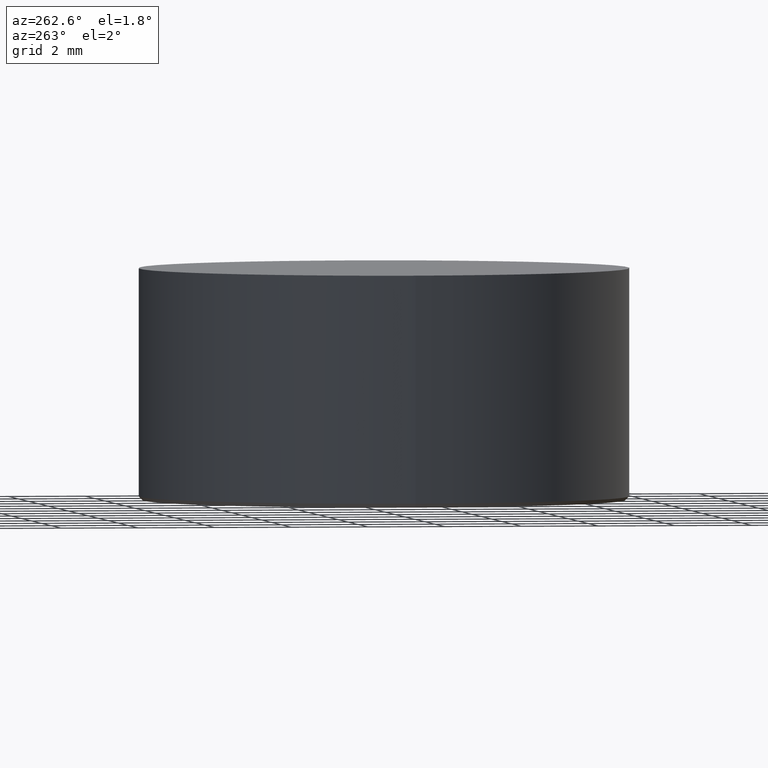
[diagram: clean part render]
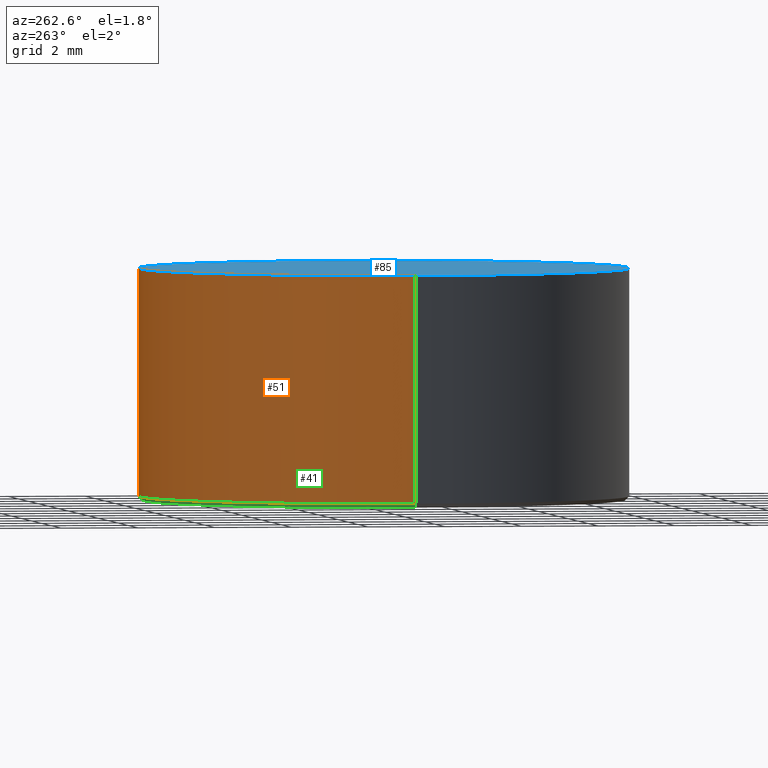
[diagram: same view with three faces highlighted in distinct colors, each labeled with its STEP entity id]
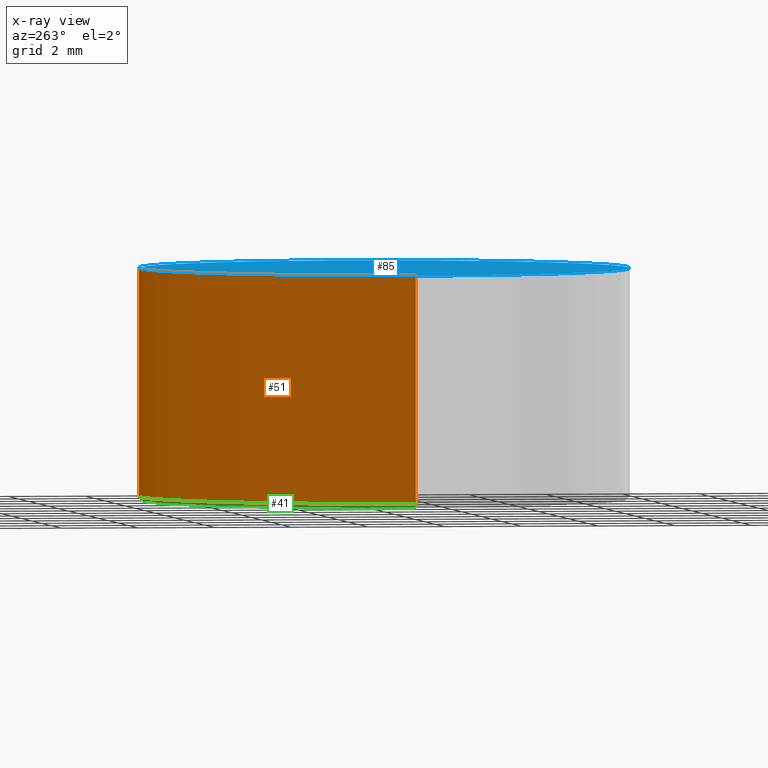
[diagram: x-ray of the same camera — body ghosted, the three highlighted faces saturated]
A machine part, auxiliary view with three faces highlighted in distinct colors.
The next image is the same camera in x-ray (body ghosted, the three faces saturated) — at least one of them is partly hidden behind the body in this view.
Their STEP definitions:

[orange] entity #51 — the highlighted cylindrical surface (partial cylindrical patch) has radius 6.35 mm, axis along (0, 0, -1).
#10 = DIRECTION ( 'NONE',  ( 0.0000000000000000000, 0.0000000000000000000, 1.000000000000000000 ) ) ;
#11 = DIRECTION ( 'NONE',  ( 1.000000000000000000, 0.0000000000000000000, 0.0000000000000000000 ) ) ;
#16 = CARTESIAN_POINT ( 'NONE',  ( -0.04150932971835186200, -0.003652676017679375900, -0.08978774678871552500 ) ) ;
#17 = AXIS2_PLACEMENT_3D ( 'NONE', #16, #10, #11 ) ;
#18 = CIRCLE ( 'NONE', #17, 0.2500000000000001100 ) ;
#19 = CARTESIAN_POINT ( 'NONE',  ( 0.2084906702816482500, -0.003652676017679375900, -0.08978774678871552500 ) ) ;
#20 = ORIENTED_EDGE ( 'NONE', *, *, #21, .T. ) ;
#21 = EDGE_CURVE ( 'NONE', #55, #35, #76, .T. ) ;
#35 = VERTEX_POINT ( 'NONE', #19 ) ;
#36 = ORIENTED_EDGE ( 'NONE', *, *, #37, .T. ) ;
#37 = EDGE_CURVE ( 'NONE', #35, #38, #18, .T. ) ;
#38 = VERTEX_POINT ( 'NONE', #142 ) ;
#39 = ORIENTED_EDGE ( 'NONE', *, *, #40, .F. ) ;
#40 = EDGE_CURVE ( 'NONE', #56, #38, #140, .T. ) ;
#51 = ADVANCED_FACE ( 'NONE', ( #159 ), #202, .T. ) ;
#52 = EDGE_LOOP ( 'NONE', ( #53, #20, #36, #39 ) ) ;
#53 = ORIENTED_EDGE ( 'NONE', *, *, #54, .F. ) ;
#54 = EDGE_CURVE ( 'NONE', #55, #56, #198, .T. ) ;
#55 = VERTEX_POINT ( 'NONE', #194 ) ;
#56 = VERTEX_POINT ( 'NONE', #193 ) ;
#73 = DIRECTION ( 'NONE',  ( 0.0000000000000000000, 0.0000000000000000000, -1.000000000000000000 ) ) ;
#74 = VECTOR ( 'NONE', #73, 39.37007874015748100 ) ;
#75 = CARTESIAN_POINT ( 'NONE',  ( 0.2084906702816482500, -0.003652676017679345500, 0.1424957177782135400 ) ) ;
#76 = LINE ( 'NONE', #75, #74 ) ;
#137 = DIRECTION ( 'NONE',  ( 0.0000000000000000000, 0.0000000000000000000, -1.000000000000000000 ) ) ;
#138 = VECTOR ( 'NONE', #137, 39.37007874015748100 ) ;
#139 = CARTESIAN_POINT ( 'NONE',  ( -0.2915093297183519700, -0.003652676017679375900, 0.1424957177782135400 ) ) ;
#140 = LINE ( 'NONE', #139, #138 ) ;
#142 = CARTESIAN_POINT ( 'NONE',  ( -0.2915093297183519700, -0.003652676017679345500, -0.08978774678871552500 ) ) ;
#159 = FACE_OUTER_BOUND ( 'NONE', #52, .T. ) ;
#193 = CARTESIAN_POINT ( 'NONE',  ( -0.2915093297183519700, -0.003652676017679375900, 0.1424957177782135400 ) ) ;
#194 = CARTESIAN_POINT ( 'NONE',  ( 0.2084906702816482500, -0.003652676017679345500, 0.1424957177782135400 ) ) ;
#195 = DIRECTION ( 'NONE',  ( 1.000000000000000000, 0.0000000000000000000, 0.0000000000000000000 ) ) ;
#196 = DIRECTION ( 'NONE',  ( 0.0000000000000000000, 0.0000000000000000000, 1.000000000000000000 ) ) ;
#197 = AXIS2_PLACEMENT_3D ( 'NONE', #203, #196, #195 ) ;
#198 = CIRCLE ( 'NONE', #197, 0.2500000000000001100 ) ;
#199 = DIRECTION ( 'NONE',  ( -1.000000000000000000, 0.0000000000000000000, 0.0000000000000000000 ) ) ;
#200 = DIRECTION ( 'NONE',  ( 0.0000000000000000000, 0.0000000000000000000, -1.000000000000000000 ) ) ;
#201 = AXIS2_PLACEMENT_3D ( 'NONE', #204, #200, #199 ) ;
#202 = CYLINDRICAL_SURFACE ( 'NONE', #201, 0.2500000000000001100 ) ;
#203 = CARTESIAN_POINT ( 'NONE',  ( -0.04150932971835186200, -0.003652676017679375900, 0.1424957177782135400 ) ) ;
#204 = CARTESIAN_POINT ( 'NONE',  ( -0.04150932971835186200, -0.003652676017679375900, 0.1424957177782135400 ) ) ;

[blue] entity #85 — the highlighted planar face has unit normal (0, 0, 1).
#54 = EDGE_CURVE ( 'NONE', #55, #56, #198, .T. ) ;
#55 = VERTEX_POINT ( 'NONE', #194 ) ;
#56 = VERTEX_POINT ( 'NONE', #193 ) ;
#82 = EDGE_CURVE ( 'NONE', #56, #55, #220, .T. ) ;
#85 = ADVANCED_FACE ( 'NONE', ( #216 ), #243, .T. ) ;
#86 = EDGE_LOOP ( 'NONE', ( #87, #88 ) ) ;
#87 = ORIENTED_EDGE ( 'NONE', *, *, #82, .T. ) ;
#88 = ORIENTED_EDGE ( 'NONE', *, *, #54, .T. ) ;
#193 = CARTESIAN_POINT ( 'NONE',  ( -0.2915093297183519700, -0.003652676017679375900, 0.1424957177782135400 ) ) ;
#194 = CARTESIAN_POINT ( 'NONE',  ( 0.2084906702816482500, -0.003652676017679345500, 0.1424957177782135400 ) ) ;
#195 = DIRECTION ( 'NONE',  ( 1.000000000000000000, 0.0000000000000000000, 0.0000000000000000000 ) ) ;
#196 = DIRECTION ( 'NONE',  ( 0.0000000000000000000, 0.0000000000000000000, 1.000000000000000000 ) ) ;
#197 = AXIS2_PLACEMENT_3D ( 'NONE', #203, #196, #195 ) ;
#198 = CIRCLE ( 'NONE', #197, 0.2500000000000001100 ) ;
#203 = CARTESIAN_POINT ( 'NONE',  ( -0.04150932971835186200, -0.003652676017679375900, 0.1424957177782135400 ) ) ;
#216 = FACE_OUTER_BOUND ( 'NONE', #86, .T. ) ;
#217 = DIRECTION ( 'NONE',  ( 1.000000000000000000, 0.0000000000000000000, 0.0000000000000000000 ) ) ;
#218 = DIRECTION ( 'NONE',  ( 0.0000000000000000000, 0.0000000000000000000, 1.000000000000000000 ) ) ;
#219 = AXIS2_PLACEMENT_3D ( 'NONE', #226, #218, #217 ) ;
#220 = CIRCLE ( 'NONE', #219, 0.2500000000000001100 ) ;
#226 = CARTESIAN_POINT ( 'NONE',  ( -0.04150932971835186200, -0.003652676017679375900, 0.1424957177782135400 ) ) ;
#239 = DIRECTION ( 'NONE',  ( 1.000000000000000000, 0.0000000000000000000, 0.0000000000000000000 ) ) ;
#240 = DIRECTION ( 'NONE',  ( 0.0000000000000000000, 0.0000000000000000000, 1.000000000000000000 ) ) ;
#241 = CARTESIAN_POINT ( 'NONE',  ( -0.04150932971835186200, -0.003652676017679375900, 0.1424957177782135400 ) ) ;
#242 = AXIS2_PLACEMENT_3D ( 'NONE', #241, #240, #239 ) ;
#243 = PLANE ( 'NONE',  #242 ) ;

[green] entity #41 — the highlighted conical surface has half-angle 45 deg.
#10 = DIRECTION ( 'NONE',  ( 0.0000000000000000000, 0.0000000000000000000, 1.000000000000000000 ) ) ;
#11 = DIRECTION ( 'NONE',  ( 1.000000000000000000, 0.0000000000000000000, 0.0000000000000000000 ) ) ;
#16 = CARTESIAN_POINT ( 'NONE',  ( -0.04150932971835186200, -0.003652676017679375900, -0.08978774678871552500 ) ) ;
#17 = AXIS2_PLACEMENT_3D ( 'NONE', #16, #10, #11 ) ;
#18 = CIRCLE ( 'NONE', #17, 0.2500000000000001100 ) ;
#19 = CARTESIAN_POINT ( 'NONE',  ( 0.2084906702816482500, -0.003652676017679375900, -0.08978774678871552500 ) ) ;
#23 = ORIENTED_EDGE ( 'NONE', *, *, #24, .F. ) ;
#24 = EDGE_CURVE ( 'NONE', #46, #35, #71, .T. ) ;
#35 = VERTEX_POINT ( 'NONE', #19 ) ;
#37 = EDGE_CURVE ( 'NONE', #35, #38, #18, .T. ) ;
#38 = VERTEX_POINT ( 'NONE', #142 ) ;
#41 = ADVANCED_FACE ( 'NONE', ( #136 ), #117, .T. ) ;
#42 = EDGE_LOOP ( 'NONE', ( #43, #47, #49, #23 ) ) ;
#43 = ORIENTED_EDGE ( 'NONE', *, *, #44, .F. ) ;
#44 = EDGE_CURVE ( 'NONE', #45, #46, #174, .T. ) ;
#45 = VERTEX_POINT ( 'NONE', #166 ) ;
#46 = VERTEX_POINT ( 'NONE', #165 ) ;
#47 = ORIENTED_EDGE ( 'NONE', *, *, #48, .T. ) ;
#48 = EDGE_CURVE ( 'NONE', #45, #38, #163, .T. ) ;
#49 = ORIENTED_EDGE ( 'NONE', *, *, #37, .F. ) ;
#68 = DIRECTION ( 'NONE',  ( 0.7071067811865536800, 0.0000000000000000000, 0.7071067811865414700 ) ) ;
#69 = VECTOR ( 'NONE', #68, 39.37007874015748100 ) ;
#70 = CARTESIAN_POINT ( 'NONE',  ( 0.2084906702816482500, -0.003652676017679375900, -0.08978774678871552500 ) ) ;
#71 = LINE ( 'NONE', #70, #69 ) ;
#117 = CONICAL_SURFACE ( 'NONE', #173, 0.2500000000000001100, 0.7853981633974569400 ) ;
#118 = CARTESIAN_POINT ( 'NONE',  ( -0.04150932971835186200, -0.003652676017679375900, -0.08978774678871552500 ) ) ;
#136 = FACE_OUTER_BOUND ( 'NONE', #42, .T. ) ;
#142 = CARTESIAN_POINT ( 'NONE',  ( -0.2915093297183519700, -0.003652676017679345500, -0.08978774678871552500 ) ) ;
#160 = DIRECTION ( 'NONE',  ( -0.7071067811865536800, 8.659274570719430600E-017, 0.7071067811865414700 ) ) ;
#161 = VECTOR ( 'NONE', #160, 39.37007874015748100 ) ;
#162 = CARTESIAN_POINT ( 'NONE',  ( -0.2915093297183519700, -0.003652676017679345500, -0.08978774678871552500 ) ) ;
#163 = LINE ( 'NONE', #162, #161 ) ;
#165 = CARTESIAN_POINT ( 'NONE',  ( 0.2045536624076323400, -0.003652676017679375900, -0.09372475466273134900 ) ) ;
#166 = CARTESIAN_POINT ( 'NONE',  ( -0.2875723218443360700, -0.003652676017679345900, -0.09372475466273134900 ) ) ;
#167 = DIRECTION ( 'NONE',  ( 1.000000000000000000, 0.0000000000000000000, 0.0000000000000000000 ) ) ;
#168 = DIRECTION ( 'NONE',  ( 0.0000000000000000000, 0.0000000000000000000, -1.000000000000000000 ) ) ;
#169 = CARTESIAN_POINT ( 'NONE',  ( -0.04150932971835186200, -0.003652676017679375900, -0.09372475466273134900 ) ) ;
#170 = AXIS2_PLACEMENT_3D ( 'NONE', #169, #168, #167 ) ;
#171 = DIRECTION ( 'NONE',  ( 1.000000000000000000, 0.0000000000000000000, 0.0000000000000000000 ) ) ;
#172 = DIRECTION ( 'NONE',  ( 0.0000000000000000000, 0.0000000000000000000, 1.000000000000000000 ) ) ;
#173 = AXIS2_PLACEMENT_3D ( 'NONE', #118, #172, #171 ) ;
#174 = CIRCLE ( 'NONE', #170, 0.2460629921259842000 ) ;